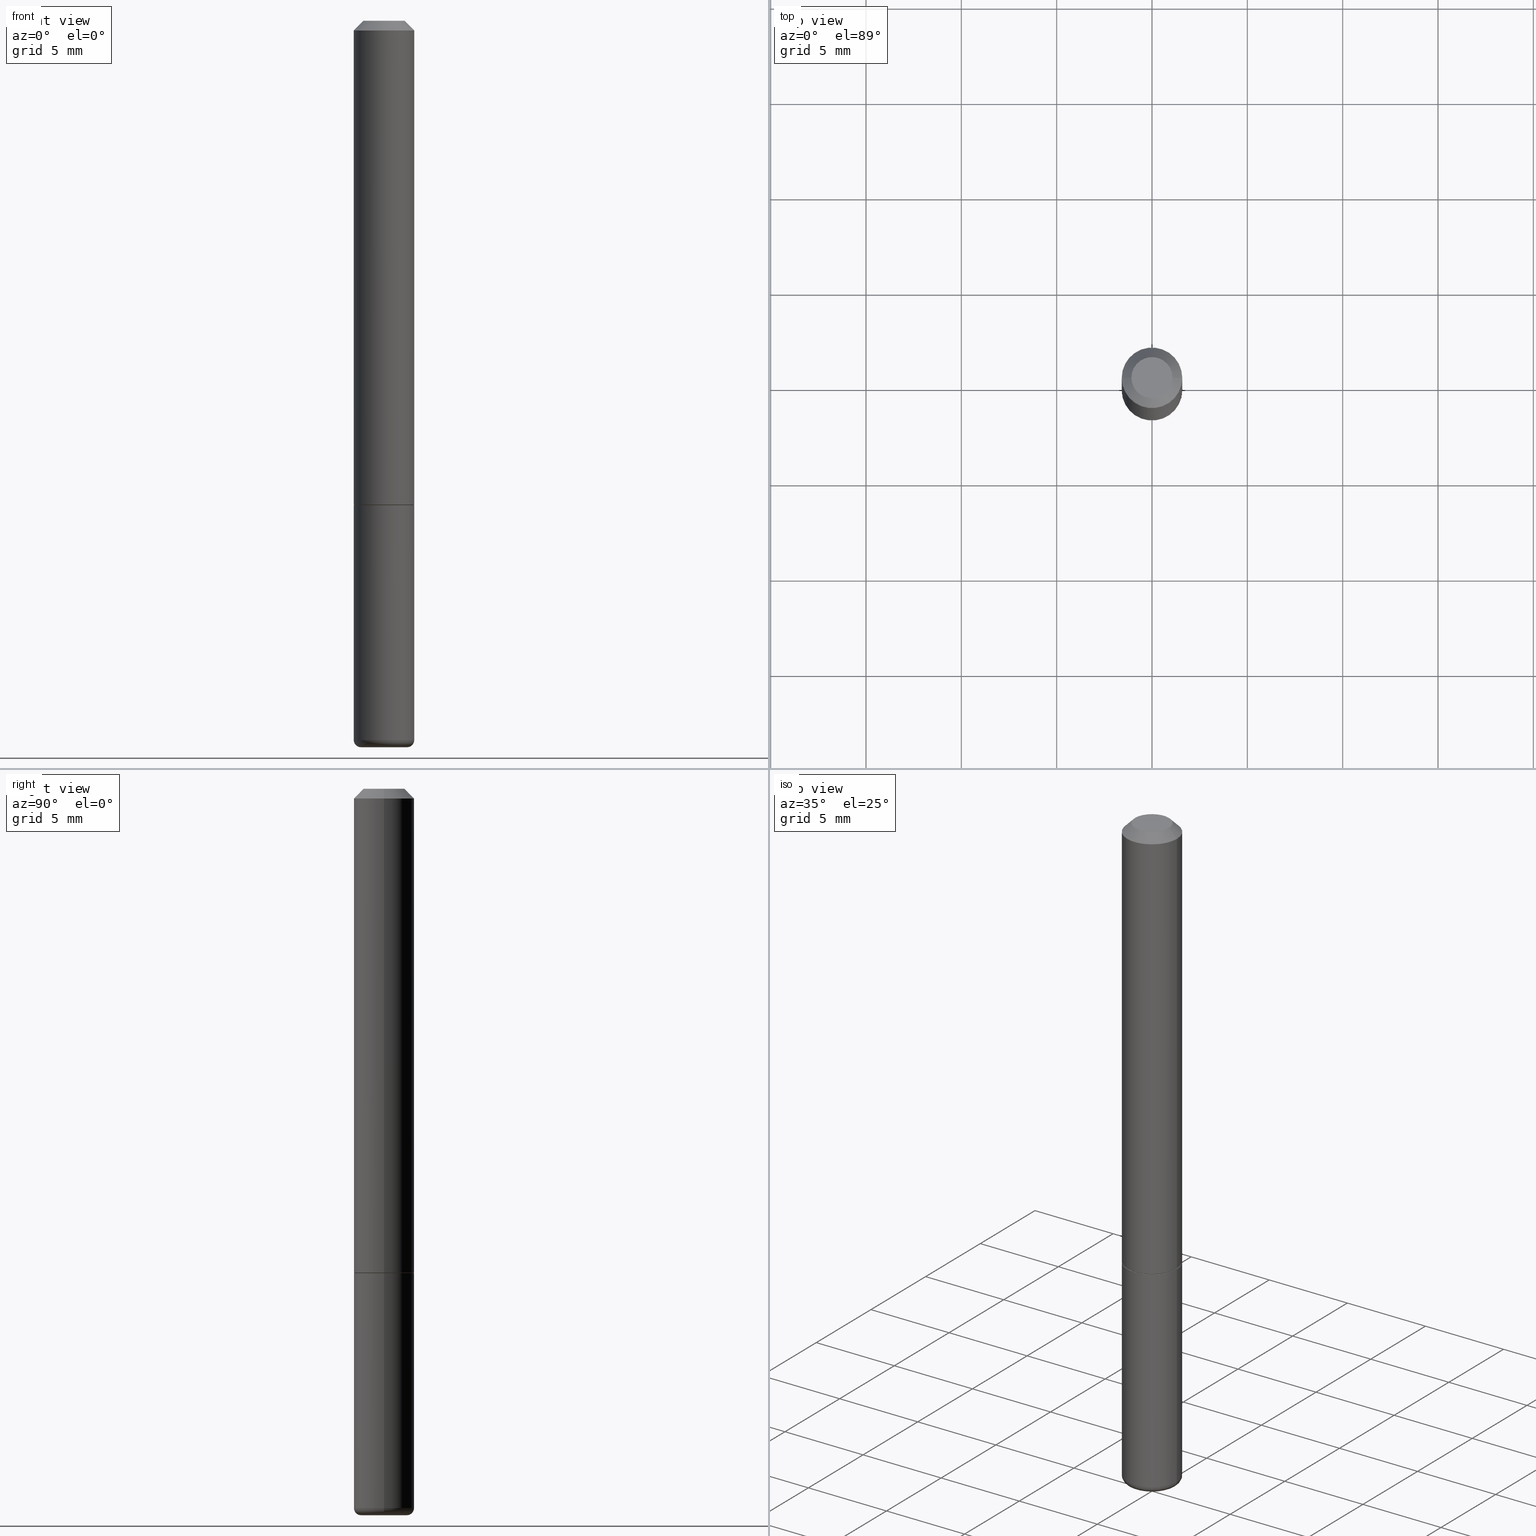
[diagram: canonical four-view strip — front | top / right | iso, engineering-drawing reading convention]
A machine part, canonical four-view strip (front | top / right | iso — engineering-drawing reading convention). The complete STEP part file that produces these views, byte-faithful:
ISO-10303-21;
HEADER;
FILE_DESCRIPTION (( 'STEP AP203' ),
    '1' );
FILE_NAME ('38115.STEP',
    '2023-03-22T20:19:31',
    ( '' ),
    ( '' ),
    'SwSTEP 2.0',
    'SolidWorks 2022',
    '' );
FILE_SCHEMA (( 'CONFIG_CONTROL_DESIGN' ));
ENDSEC;

DATA;
#1 = CARTESIAN_POINT ( 'NONE',  ( -2.036921152567683466E-17, -5.228674068168398963E-15, -1.497551772652707003 ) ) ;
#2 = AXIS2_PLACEMENT_3D ( 'NONE', #210, #307, #131 ) ;
#3 = CARTESIAN_POINT ( 'NONE',  ( 2.445468806185137438E-29, -3.491481338843146371E-15, -1.000000000000000222 ) ) ;
#4 = ADVANCED_FACE ( 'NONE', ( #124 ), #401, .T. ) ;
#5 = ORIENTED_EDGE ( 'NONE', *, *, #301, .F. ) ;
#6 = PLANE ( 'NONE',  #367 ) ;
#7 = APPROVAL_STATUS ( 'not_yet_approved' ) ;
#8 = AXIS2_PLACEMENT_3D ( 'NONE', #14, #155, #158 ) ;
#9 = PERSON_AND_ORGANIZATION ( #115, #89 ) ;
#10 = AXIS2_PLACEMENT_3D ( 'NONE', #440, #39, #68 ) ;
#11 = CARTESIAN_POINT ( 'NONE',  ( 0.000000000000000000, 0.000000000000000000, 0.000000000000000000 ) ) ;
#12 = DIRECTION ( 'NONE',  ( -2.438088387897960049E-29, 3.491481338843145188E-15, 1.000000000000000000 ) ) ;
#13 = CARTESIAN_POINT ( 'NONE',  ( 0.06250000000000001388, -3.927916506198538435E-15, -1.000000000000000222 ) ) ;
#14 = CARTESIAN_POINT ( 'NONE',  ( 3.631571448635045368E-29, -5.184921562489524681E-15, -1.485020556978682515 ) ) ;
#15 = CIRCLE ( 'NONE', #272, 0.04249999999999995448 ) ;
#16 = LOCAL_TIME ( 16, 19, 31.00000000000000000, #330 ) ;
#17 = EDGE_CURVE ( 'NONE', #285, #205, #218, .T. ) ;
#18 = ORIENTED_EDGE ( 'NONE', *, *, #429, .F. ) ;
#19 = DATE_AND_TIME ( #85, #16 ) ;
#20 = ORIENTED_EDGE ( 'NONE', *, *, #32, .T. ) ;
#21 = CARTESIAN_POINT ( 'NONE',  ( 2.445468806185137438E-29, -3.491481338843146371E-15, -1.000000000000000222 ) ) ;
#22 = CIRCLE ( 'NONE', #266, 0.06150000000000001299 ) ;
#23 = ORIENTED_EDGE ( 'NONE', *, *, #60, .T. ) ;
#24 = CIRCLE ( 'NONE', #300, 0.06250000000000001388 ) ;
#25 = CARTESIAN_POINT ( 'NONE',  ( 0.000000000000000000, 0.000000000000000000, 0.000000000000000000 ) ) ;
#26 = CC_DESIGN_PERSON_AND_ORGANIZATION_ASSIGNMENT ( #151, #225, ( #442 ) ) ;
#27 = CARTESIAN_POINT ( 'NONE',  ( -0.06150000000000001299, -3.049199102002463150E-15, -1.000000000000000222 ) ) ;
#28 = EDGE_LOOP ( 'NONE', ( #63, #102, #395, #237 ) ) ;
#29 = DIRECTION ( 'NONE',  ( 1.000000000000000000, -6.982962677686268288E-15, 0.000000000000000000 ) ) ;
#30 = DIRECTION ( 'NONE',  ( -2.445468806185136877E-29, 3.491481338843145188E-15, 1.000000000000000000 ) ) ;
#31 = DIRECTION ( 'NONE',  ( 1.000000000000000000, -6.982962677686259611E-15, 4.883557194083110659E-29 ) ) ;
#32 = EDGE_CURVE ( 'NONE', #337, #100, #231, .T. ) ;
#33 = VECTOR ( 'NONE', #394, 39.37007874015748143 ) ;
#34 = DIRECTION ( 'NONE',  ( -2.445468806185136877E-29, 3.491481338843145188E-15, 1.000000000000000000 ) ) ;
#35 = EDGE_LOOP ( 'NONE', ( #302, #214, #162, #346 ) ) ;
#36 = DIRECTION ( 'NONE',  ( 1.000000000000000000, -6.982962677686269077E-15, 0.000000000000000000 ) ) ;
#37 = FACE_OUTER_BOUND ( 'NONE', #135, .T. ) ;
#38 = ORIENTED_EDGE ( 'NONE', *, *, #429, .T. ) ;
#39 = DIRECTION ( 'NONE',  ( -2.445468806185136597E-29, 3.491481338843145583E-15, 1.000000000000000000 ) ) ;
#40 = CIRCLE ( 'NONE', #384, 0.01499999999999971148 ) ;
#41 = CC_DESIGN_APPROVAL ( #120, ( #371 ) ) ;
#42 = PERSON_AND_ORGANIZATION ( #115, #89 ) ;
#43 = VERTEX_POINT ( 'NONE', #202 ) ;
#44 = PERSON_AND_ORGANIZATION_ROLE ( 'creator' ) ;
#45 = DIRECTION ( 'NONE',  ( -2.445468806185136597E-29, 3.491481338843145583E-15, 1.000000000000000000 ) ) ;
#46 = CARTESIAN_POINT ( 'NONE',  ( 0.06249999999999975020, -5.621356729844913983E-15, -1.485020556978682515 ) ) ;
#47 = PERSON_AND_ORGANIZATION_ROLE ( 'creator' ) ;
#48 = AXIS2_PLACEMENT_3D ( 'NONE', #388, #230, #147 ) ;
#49 = LENGTH_MEASURE_WITH_UNIT ( LENGTH_MEASURE( 0.02539999999999999897 ), #423 );
#50 = CIRCLE ( 'NONE', #2, 0.04671496065635604572 ) ;
#51 = VERTEX_POINT ( 'NONE', #223 ) ;
#52 = PLANE ( 'NONE',  #299 ) ;
#53 = EDGE_CURVE ( 'NONE', #285, #140, #325, .T. ) ;
#54 = VERTEX_POINT ( 'NONE', #27 ) ;
#55 = VERTEX_POINT ( 'NONE', #240 ) ;
#56 = CC_DESIGN_SECURITY_CLASSIFICATION ( #219, ( #97 ) ) ;
#57 = ORIENTED_EDGE ( 'NONE', *, *, #282, .F. ) ;
#58 = ORIENTED_EDGE ( 'NONE', *, *, #434, .T. ) ;
#59 = DATE_TIME_ROLE ( 'classification_date' ) ;
#60 = EDGE_CURVE ( 'NONE', #43, #55, #15, .T. ) ;
#61 = ORIENTED_EDGE ( 'NONE', *, *, #112, .T. ) ;
#62 = CIRCLE ( 'NONE', #81, 0.06249999999999981265 ) ;
#63 = ORIENTED_EDGE ( 'NONE', *, *, #53, .F. ) ;
#64 = DIRECTION ( 'NONE',  ( -2.445468806185136597E-29, 3.491481338843145583E-15, 1.000000000000000000 ) ) ;
#65 = DIRECTION ( 'NONE',  ( -1.000000000000000000, 6.982962677686266711E-15, 0.000000000000000000 ) ) ;
#66 = AXIS2_PLACEMENT_3D ( 'NONE', #21, #161, #127 ) ;
#67 = LOCAL_TIME ( 16, 19, 31.00000000000000000, #145 ) ;
#68 = DIRECTION ( 'NONE',  ( 1.000000000000000000, -6.982962677686268288E-15, 0.000000000000000000 ) ) ;
#69 = DIRECTION ( 'NONE',  ( 7.105427357601001859E-15, 1.000000000000000000, -3.491481338843145583E-15 ) ) ;
#70 = EDGE_CURVE ( 'NONE', #51, #54, #22, .T. ) ;
#71 = DIRECTION ( 'NONE',  ( -6.982962677686266711E-15, -1.000000000000000000, 3.491481338843145583E-15 ) ) ;
#72 = FACE_OUTER_BOUND ( 'NONE', #374, .T. ) ;
#73 = DIRECTION ( 'NONE',  ( 1.000000000000000000, -6.982962677686266711E-15, 4.876176775795935232E-29 ) ) ;
#74 = CONICAL_SURFACE ( 'NONE', #260, 0.06150000000000001299, 0.7853981633975165577 ) ;
#75 = APPROVAL_PERSON_ORGANIZATION ( #326, #259, #303 ) ;
#76 = CALENDAR_DATE ( 2023, 22, 3 ) ;
#77 = CARTESIAN_POINT ( 'NONE',  ( -0.04750000000000004219, -4.847413763003477187E-15, -1.485020556978682960 ) ) ;
#78 = DIRECTION ( 'NONE',  ( 0.7071067811865957564, -2.468850131082761932E-15, 0.7071067811864992780 ) ) ;
#79 = EDGE_CURVE ( 'NONE', #54, #51, #390, .T. ) ;
#80 =( NAMED_UNIT ( * ) PLANE_ANGLE_UNIT ( ) SI_UNIT ( $, .RADIAN. ) );
#81 = AXIS2_PLACEMENT_3D ( 'NONE', #349, #101, #177 ) ;
#82 = DIRECTION ( 'NONE',  ( 1.000000000000000000, -6.982962677686259611E-15, 4.883557194083110659E-29 ) ) ;
#83 = ADVANCED_FACE ( 'NONE', ( #397 ), #93, .T. ) ;
#84 = FACE_OUTER_BOUND ( 'NONE', #165, .T. ) ;
#85 = CALENDAR_DATE ( 2023, 22, 3 ) ;
#86 = CC_DESIGN_PERSON_AND_ORGANIZATION_ASSIGNMENT ( #9, #297, ( #219 ) ) ;
#87 = DIRECTION ( 'NONE',  ( -1.000000000000000000, 6.982962677686266711E-15, 0.000000000000000000 ) ) ;
#88 = AXIS2_PLACEMENT_3D ( 'NONE', #379, #284, #350 ) ;
#89 = ORGANIZATION ( 'UNSPECIFIED', 'UNSPECIFIED', '' ) ;
#90 = ORIENTED_EDGE ( 'NONE', *, *, #370, .T. ) ;
#91 = ORIENTED_EDGE ( 'NONE', *, *, #383, .T. ) ;
#92 = ADVANCED_FACE ( 'NONE', ( #249 ), #74, .T. ) ;
#93 = CYLINDRICAL_SURFACE ( 'NONE', #132, 0.06249999999999988204 ) ;
#94 = VERTEX_POINT ( 'NONE', #317 ) ;
#95 = CARTESIAN_POINT ( 'NONE',  ( 2.445468806185137438E-29, -3.491481338843146371E-15, -1.000000000000000222 ) ) ;
#96 = EDGE_LOOP ( 'NONE', ( #288, #441, #160 ) ) ;
#97 = PRODUCT_DEFINITION_FORMATION_WITH_SPECIFIED_SOURCE ( 'ANY', '', #442, .NOT_KNOWN. ) ;
#98 = ADVANCED_FACE ( 'NONE', ( #291 ), #144, .F. ) ;
#99 = DIRECTION ( 'NONE',  ( -2.445468806185136597E-29, 3.491481338843145583E-15, 1.000000000000000000 ) ) ;
#100 = VERTEX_POINT ( 'NONE', #108 ) ;
#101 = DIRECTION ( 'NONE',  ( -2.445468806185136597E-29, 3.491481338843145583E-15, 1.000000000000000000 ) ) ;
#102 = ORIENTED_EDGE ( 'NONE', *, *, #17, .T. ) ;
#103 = CYLINDRICAL_SURFACE ( 'NONE', #200, 0.06249999999999988204 ) ;
#104 = DIRECTION ( 'NONE',  ( 2.445468806185136597E-29, -3.491481338843145583E-15, -1.000000000000000000 ) ) ;
#105 = CONICAL_SURFACE ( 'NONE', #339, 751.2258538476739886, 1.518436449235074148 ) ;
#106 = DIRECTION ( 'NONE',  ( -0.7071067811865461294, 2.468850131082242072E-15, -0.7071067811865489050 ) ) ;
#107 = CARTESIAN_POINT ( 'NONE',  ( -0.04671496065635604572, -4.823062300723629506E-15, -1.500000000000000888 ) ) ;
#108 = CARTESIAN_POINT ( 'NONE',  ( 0.06249999999999981265, -4.986107516375823445E-16, -0.01999999999999999001 ) ) ;
#109 = DIRECTION ( 'NONE',  ( 2.438088387897960049E-29, -3.491481338843145188E-15, -1.000000000000000000 ) ) ;
#110 = APPLICATION_CONTEXT ( 'configuration controlled 3d designs of mechanical parts and assemblies' ) ;
#111 = AXIS2_PLACEMENT_3D ( 'NONE', #271, #318, #148 ) ;
#112 = EDGE_CURVE ( 'NONE', #322, #285, #40, .T. ) ;
#113 = APPROVAL_DATE_TIME ( #221, #424 ) ;
#114 = DATE_TIME_ROLE ( 'creation_date' ) ;
#115 = PERSON ( 'UNSPECIFIED', 'UNSPECIFIED', 'UNSPECIFIED', ('UNSPECIFIED'), ('UNSPECIFIED'), ('UNSPECIFIED') ) ;
#116 = CARTESIAN_POINT ( 'NONE',  ( 1.357006838635785746E-45, -1.937446121494581442E-31, -5.549066237130534971E-17 ) ) ;
#117 = EDGE_CURVE ( 'NONE', #100, #94, #199, .T. ) ;
#118 = FACE_OUTER_BOUND ( 'NONE', #270, .T. ) ;
#119 = DIRECTION ( 'NONE',  ( 0.000000000000000000, 0.000000000000000000, 1.000000000000000000 ) ) ;
#120 = APPROVAL ( #7, 'UNSPECIFIED' ) ;
#121 = DIRECTION ( 'NONE',  ( -1.000000000000000000, 6.982962677686265922E-15, -4.876176775795935793E-29 ) ) ;
#122 = ADVANCED_BREP_SHAPE_REPRESENTATION ( '38115', ( #289, #426, #363 ), #432 ) ;
#123 = FACE_OUTER_BOUND ( 'NONE', #35, .T. ) ;
#124 = FACE_OUTER_BOUND ( 'NONE', #224, .T. ) ;
#125 = APPLICATION_CONTEXT ( 'configuration controlled 3d designs of mechanical parts and assemblies' ) ;
#126 = CIRCLE ( 'NONE', #164, 0.06249999999999995143 ) ;
#127 = DIRECTION ( 'NONE',  ( 1.000000000000000000, -6.982962677686268288E-15, 0.000000000000000000 ) ) ;
#128 = ORIENTED_EDGE ( 'NONE', *, *, #383, .F. ) ;
#129 = VERTEX_POINT ( 'NONE', #139 ) ;
#130 = ADVANCED_FACE ( 'NONE', ( #37 ), #105, .F. ) ;
#131 = DIRECTION ( 'NONE',  ( 1.000000000000000000, -6.982962677686258033E-15, 0.000000000000000000 ) ) ;
#132 = AXIS2_PLACEMENT_3D ( 'NONE', #25, #166, #435 ) ;
#133 = CIRCLE ( 'NONE', #232, 0.06250000000000001388 ) ;
#134 = DIRECTION ( 'NONE',  ( -2.445468806185136597E-29, 3.491481338843145583E-15, 1.000000000000000000 ) ) ;
#135 = EDGE_LOOP ( 'NONE', ( #309, #359, #128 ) ) ;
#136 = DIRECTION ( 'NONE',  ( -0.7071067811865957564, 7.493145998870527710E-15, 0.7071067811864992780 ) ) ;
#137 = EDGE_LOOP ( 'NONE', ( #314, #351, #168, #235 ) ) ;
#138 = LINE ( 'NONE', #382, #356 ) ;
#139 = CARTESIAN_POINT ( 'NONE',  ( 3.676439890055245808E-29, -5.208304856642685058E-15, -1.497551772652707003 ) ) ;
#140 = VERTEX_POINT ( 'NONE', #335 ) ;
#141 = AXIS2_PLACEMENT_3D ( 'NONE', #280, #99, #415 ) ;
#142 = CARTESIAN_POINT ( 'NONE',  ( 2.445468806185137438E-29, -3.491481338843146371E-15, -1.000000000000000222 ) ) ;
#143 =( NAMED_UNIT ( * ) SI_UNIT ( $, .STERADIAN. ) SOLID_ANGLE_UNIT ( ) );
#144 = PLANE ( 'NONE',  #238 ) ;
#145 = COORDINATED_UNIVERSAL_TIME_OFFSET ( 5, 0, .BEHIND. ) ;
#146 = CARTESIAN_POINT ( 'NONE',  ( 0.06150000000000001299, -3.920933543520852421E-15, -1.000000000000000222 ) ) ;
#147 = DIRECTION ( 'NONE',  ( -1.000000000000000000, 6.982962677686266711E-15, 0.000000000000000000 ) ) ;
#148 = DIRECTION ( 'NONE',  ( 1.000000000000000000, -6.982962677686266711E-15, 4.876176775795935232E-29 ) ) ;
#149 = CARTESIAN_POINT ( 'NONE',  ( 0.04671496065635604572, -5.563430835017637755E-15, -1.500000000000000888 ) ) ;
#150 = ADVANCED_FACE ( 'NONE', ( #123 ), #320, .T. ) ;
#151 = PERSON_AND_ORGANIZATION ( #115, #89 ) ;
#152 = EDGE_LOOP ( 'NONE', ( #58, #23 ) ) ;
#153 = APPROVAL_ROLE ( '' ) ;
#154 = FACE_OUTER_BOUND ( 'NONE', #192, .T. ) ;
#155 = DIRECTION ( 'NONE',  ( -2.445468806185136597E-29, 3.491481338843145583E-15, 1.000000000000000000 ) ) ;
#156 = VERTEX_POINT ( 'NONE', #13 ) ;
#157 = COORDINATED_UNIVERSAL_TIME_OFFSET ( 5, 0, .BEHIND. ) ;
#158 = DIRECTION ( 'NONE',  ( 1.000000000000000000, -6.982962677686259611E-15, 0.000000000000000000 ) ) ;
#159 = ADVANCED_FACE ( 'NONE', ( #154 ), #376, .T. ) ;
#160 = ORIENTED_EDGE ( 'NONE', *, *, #331, .F. ) ;
#161 = DIRECTION ( 'NONE',  ( -2.445468806185136597E-29, 3.491481338843145583E-15, 1.000000000000000000 ) ) ;
#162 = ORIENTED_EDGE ( 'NONE', *, *, #301, .T. ) ;
#163 = VECTOR ( 'NONE', #181, 39.37007874015748143 ) ;
#164 = AXIS2_PLACEMENT_3D ( 'NONE', #215, #64, #29 ) ;
#165 = EDGE_LOOP ( 'NONE', ( #396, #38, #333, #392 ) ) ;
#166 = DIRECTION ( 'NONE',  ( -2.445468806185136597E-29, 3.491481338843145583E-15, 1.000000000000000000 ) ) ;
#167 = ADVANCED_FACE ( 'NONE', ( #84 ), #336, .T. ) ;
#168 = ORIENTED_EDGE ( 'NONE', *, *, #292, .F. ) ;
#169 = CARTESIAN_POINT ( 'NONE',  ( 0.000000000000000000, 0.000000000000000000, 0.000000000000000000 ) ) ;
#170 = CC_DESIGN_PERSON_AND_ORGANIZATION_ASSIGNMENT ( #357, #44, ( #97 ) ) ;
#171 = ORIENTED_EDGE ( 'NONE', *, *, #269, .T. ) ;
#172 = CARTESIAN_POINT ( 'NONE',  ( -0.06249999999999988204, 4.440892098500617780E-16, -3.074334431409310158E-30 ) ) ;
#173 = CARTESIAN_POINT ( 'NONE',  ( 1.357006838635785746E-45, -1.937446121494581442E-31, -5.549066237130534971E-17 ) ) ;
#174 = VERTEX_POINT ( 'NONE', #431 ) ;
#175 = LINE ( 'NONE', #1, #340 ) ;
#176 = ORIENTED_EDGE ( 'NONE', *, *, #247, .T. ) ;
#177 = DIRECTION ( 'NONE',  ( 1.000000000000000000, -6.982962677686266711E-15, 0.000000000000000000 ) ) ;
#178 = CARTESIAN_POINT ( 'NONE',  ( 9.994051560177719446E-28, -1.426885692982134992E-13, -40.86763051281019443 ) ) ;
#179 = EDGE_LOOP ( 'NONE', ( #18, #304, #20, #209 ) ) ;
#180 = ORIENTED_EDGE ( 'NONE', *, *, #79, .T. ) ;
#181 = DIRECTION ( 'NONE',  ( 0.7071067811865461294, -7.319954787623251312E-15, -0.7071067811865489050 ) ) ;
#182 = CLOSED_SHELL ( 'NONE', ( #159, #167, #342, #150, #417, #92, #226, #98 ) ) ;
#183 = CIRCLE ( 'NONE', #377, 0.04249999999999995448 ) ;
#184 = APPROVAL_ROLE ( '' ) ;
#185 = ADVANCED_FACE ( 'NONE', ( #345 ), #243, .F. ) ;
#186 = CARTESIAN_POINT ( 'NONE',  ( 4.364351673554161734E-16, 0.06249999999999652361, -1.000000000000000444 ) ) ;
#187 = DATE_AND_TIME ( #222, #296 ) ;
#188 = DIRECTION ( 'NONE',  ( 2.438088387897960049E-29, -3.491481338843145188E-15, -1.000000000000000000 ) ) ;
#189 = APPROVAL_STATUS ( 'not_yet_approved' ) ;
#190 = VECTOR ( 'NONE', #191, 39.37007874015748143 ) ;
#191 = DIRECTION ( 'NONE',  ( -2.445468806185136877E-29, 3.491481338843145188E-15, 1.000000000000000000 ) ) ;
#192 = EDGE_LOOP ( 'NONE', ( #311, #171, #278, #329 ) ) ;
#193 = DIRECTION ( 'NONE',  ( 1.000000000000000000, 0.000000000000000000, 0.000000000000000000 ) ) ;
#194 = CARTESIAN_POINT ( 'NONE',  ( 3.631571448635045929E-29, -5.184921562489525469E-15, -1.485020556978682960 ) ) ;
#195 = DIRECTION ( 'NONE',  ( 1.000000000000000000, -6.982962677686265922E-15, 4.876176775795935793E-29 ) ) ;
#196 = DIRECTION ( 'NONE',  ( 2.445468806185136597E-29, -3.491481338843145583E-15, -1.000000000000000000 ) ) ;
#197 = ORIENTED_EDGE ( 'NONE', *, *, #257, .F. ) ;
#198 = CARTESIAN_POINT ( 'NONE',  ( 0.06249999999999981265, -4.986107516375823445E-16, -0.01999999999999999001 ) ) ;
#199 = CIRCLE ( 'NONE', #88, 0.06249999999999981265 ) ;
#200 = AXIS2_PLACEMENT_3D ( 'NONE', #274, #381, #73 ) ;
#201 = APPROVAL_DATE_TIME ( #341, #259 ) ;
#202 = CARTESIAN_POINT ( 'NONE',  ( 0.04249999999999995448, -3.950909582714361036E-16, -5.549066237130292766E-17 ) ) ;
#203 = CARTESIAN_POINT ( 'NONE',  ( 4.890937612370270531E-31, -6.982962677686289144E-17, -0.01999999999999999001 ) ) ;
#204 = ORIENTED_EDGE ( 'NONE', *, *, #117, .T. ) ;
#205 = VERTEX_POINT ( 'NONE', #46 ) ;
#206 = AXIS2_PLACEMENT_3D ( 'NONE', #438, #408, #65 ) ;
#207 = ORIENTED_EDGE ( 'NONE', *, *, #70, .F. ) ;
#208 = LINE ( 'NONE', #172, #190 ) ;
#209 = ORIENTED_EDGE ( 'NONE', *, *, #364, .F. ) ;
#210 = CARTESIAN_POINT ( 'NONE',  ( 3.668203209277707137E-29, -5.237222008264721332E-15, -1.500000000000000888 ) ) ;
#211 = CIRCLE ( 'NONE', #10, 0.06249999999999995143 ) ;
#212 = ADVANCED_FACE ( 'NONE', ( #72 ), #6, .F. ) ;
#213 = CARTESIAN_POINT ( 'NONE',  ( -0.06249999999999975020, -3.894112240816274685E-15, -1.485020556978682515 ) ) ;
#214 = ORIENTED_EDGE ( 'NONE', *, *, #434, .F. ) ;
#215 = CARTESIAN_POINT ( 'NONE',  ( 2.443023337378952675E-29, -3.487989857504303759E-15, -0.9990000000000004432 ) ) ;
#216 = COORDINATED_UNIVERSAL_TIME_OFFSET ( 5, 0, .BEHIND. ) ;
#217 = DIRECTION ( 'NONE',  ( 1.000000000000000000, -6.982962677686268288E-15, 0.000000000000000000 ) ) ;
#218 = CIRCLE ( 'NONE', #8, 0.06249999999999975020 ) ;
#219 = SECURITY_CLASSIFICATION ( '', '', #319 ) ;
#220 = APPROVAL_PERSON_ORGANIZATION ( #42, #424, #184 ) ;
#221 = DATE_AND_TIME ( #385, #273 ) ;
#222 = CALENDAR_DATE ( 2023, 22, 3 ) ;
#223 = CARTESIAN_POINT ( 'NONE',  ( 0.06150000000000001299, -3.920933543520852421E-15, -1.000000000000000222 ) ) ;
#224 = EDGE_LOOP ( 'NONE', ( #410, #61, #57, #430 ) ) ;
#225 = PERSON_AND_ORGANIZATION_ROLE ( 'design_owner' ) ;
#226 = ADVANCED_FACE ( 'NONE', ( #118 ), #52, .F. ) ;
#227 = AXIS2_PLACEMENT_3D ( 'NONE', #315, #71, #378 ) ;
#228 = DIRECTION ( 'NONE',  ( 1.000000000000000000, -6.982962677686268288E-15, 0.000000000000000000 ) ) ;
#229 =( CONVERSION_BASED_UNIT ( 'INCH', #49 ) LENGTH_UNIT ( ) NAMED_UNIT ( #365 ) );
#230 = DIRECTION ( 'NONE',  ( 2.445468806185136597E-29, -3.491481338843145583E-15, -1.000000000000000000 ) ) ;
#231 = LINE ( 'NONE', #428, #33 ) ;
#232 = AXIS2_PLACEMENT_3D ( 'NONE', #3, #134, #36 ) ;
#233 = DIRECTION ( 'NONE',  ( 1.000000000000000000, -6.982962677686268288E-15, 0.000000000000000000 ) ) ;
#234 = APPROVAL_STATUS ( 'not_yet_approved' ) ;
#235 = ORIENTED_EDGE ( 'NONE', *, *, #411, .F. ) ;
#236 = EDGE_CURVE ( 'NONE', #51, #337, #366, .T. ) ;
#237 = ORIENTED_EDGE ( 'NONE', *, *, #370, .F. ) ;
#238 = AXIS2_PLACEMENT_3D ( 'NONE', #418, #109, #251 ) ;
#239 = APPROVAL_PERSON_ORGANIZATION ( #294, #120, #153 ) ;
#240 = CARTESIAN_POINT ( 'NONE',  ( -0.04249999999999995448, 3.316907271900966728E-16, -5.549066237130754373E-17 ) ) ;
#241 = FACE_OUTER_BOUND ( 'NONE', #179, .T. ) ;
#242 = DIRECTION ( 'NONE',  ( -2.445468806185136597E-29, 3.491481338843145583E-15, 1.000000000000000000 ) ) ;
#243 = CONICAL_SURFACE ( 'NONE', #48, 751.2258538476739886, 1.518436449235074148 ) ;
#244 = AXIS2_PLACEMENT_3D ( 'NONE', #246, #347, #412 ) ;
#245 = VERTEX_POINT ( 'NONE', #149 ) ;
#246 = CARTESIAN_POINT ( 'NONE',  ( 3.631571448635045368E-29, -5.184921562489524681E-15, -1.485020556978682515 ) ) ;
#247 = EDGE_CURVE ( 'NONE', #43, #100, #256, .T. ) ;
#248 = FACE_OUTER_BOUND ( 'NONE', #137, .T. ) ;
#249 = FACE_OUTER_BOUND ( 'NONE', #433, .T. ) ;
#250 = CC_DESIGN_DATE_AND_TIME_ASSIGNMENT ( #187, #114, ( #371 ) ) ;
#251 = DIRECTION ( 'NONE',  ( -1.000000000000000000, 6.982962677686265922E-15, -4.876176775795935793E-29 ) ) ;
#252 = AXIS2_PLACEMENT_3D ( 'NONE', #203, #196, #87 ) ;
#253 = CC_DESIGN_APPROVAL ( #259, ( #219 ) ) ;
#254 = PERSON_AND_ORGANIZATION_ROLE ( 'design_supplier' ) ;
#255 = CARTESIAN_POINT ( 'NONE',  ( 2.036921152575008162E-17, -5.228674068168398963E-15, -1.497551772652707003 ) ) ;
#256 = LINE ( 'NONE', #198, #163 ) ;
#257 = EDGE_CURVE ( 'NONE', #174, #337, #211, .T. ) ;
#258 = DIRECTION ( 'NONE',  ( -2.445468806185136597E-29, 3.491481338843145583E-15, 1.000000000000000000 ) ) ;
#259 = APPROVAL ( #234, 'UNSPECIFIED' ) ;
#260 = AXIS2_PLACEMENT_3D ( 'NONE', #355, #45, #217 ) ;
#261 = CONICAL_SURFACE ( 'NONE', #206, 0.06249999999999981265, 0.7853981633974463916 ) ;
#262 = ORIENTED_EDGE ( 'NONE', *, *, #79, .F. ) ;
#263 = CARTESIAN_POINT ( 'NONE',  ( 2.445468806185137438E-29, -3.491481338843146371E-15, -1.000000000000000222 ) ) ;
#264 = EDGE_CURVE ( 'NONE', #129, #322, #175, .T. ) ;
#265 = ORIENTED_EDGE ( 'NONE', *, *, #275, .T. ) ;
#266 = AXIS2_PLACEMENT_3D ( 'NONE', #95, #308, #233 ) ;
#267 = CC_DESIGN_DATE_AND_TIME_ASSIGNMENT ( #19, #59, ( #219 ) ) ;
#268 = VECTOR ( 'NONE', #34, 39.37007874015748143 ) ;
#269 = EDGE_CURVE ( 'NONE', #54, #174, #353, .T. ) ;
#270 = EDGE_LOOP ( 'NONE', ( #207, #262 ) ) ;
#271 = CARTESIAN_POINT ( 'NONE',  ( 0.000000000000000000, 0.000000000000000000, 0.000000000000000000 ) ) ;
#272 = AXIS2_PLACEMENT_3D ( 'NONE', #173, #332, #373 ) ;
#273 = LOCAL_TIME ( 16, 19, 31.00000000000000000, #290 ) ;
#274 = CARTESIAN_POINT ( 'NONE',  ( 0.000000000000000000, 0.000000000000000000, 0.000000000000000000 ) ) ;
#275 = EDGE_CURVE ( 'NONE', #245, #205, #420, .T. ) ;
#276 = ORIENTED_EDGE ( 'NONE', *, *, #112, .F. ) ;
#277 = CARTESIAN_POINT ( 'NONE',  ( -0.06150000000000001299, -3.054497556350684763E-15, -1.000000000000000222 ) ) ;
#278 = ORIENTED_EDGE ( 'NONE', *, *, #399, .F. ) ;
#279 = CARTESIAN_POINT ( 'NONE',  ( 0.06249999999999995143, -3.924425024859695428E-15, -0.9990000000000004432 ) ) ;
#280 = CARTESIAN_POINT ( 'NONE',  ( 3.668203209277707137E-29, -5.237222008264721332E-15, -1.500000000000000888 ) ) ;
#281 = AXIS2_PLACEMENT_3D ( 'NONE', #194, #425, #82 ) ;
#282 = EDGE_CURVE ( 'NONE', #205, #285, #283, .T. ) ;
#283 = CIRCLE ( 'NONE', #244, 0.06249999999999975020 ) ;
#284 = DIRECTION ( 'NONE',  ( -2.445468806185136597E-29, 3.491481338843145583E-15, 1.000000000000000000 ) ) ;
#285 = VERTEX_POINT ( 'NONE', #213 ) ;
#286 = PRODUCT_DEFINITION_SHAPE ( 'NONE', 'NONE',  #371 ) ;
#287 = LINE ( 'NONE', #416, #268 ) ;
#288 = ORIENTED_EDGE ( 'NONE', *, *, #439, .F. ) ;
#289 = MANIFOLD_SOLID_BREP ( 'Body-Move/Copy2[1]', #327 ) ;
#290 = COORDINATED_UNIVERSAL_TIME_OFFSET ( 5, 0, .BEHIND. ) ;
#291 = FACE_OUTER_BOUND ( 'NONE', #152, .T. ) ;
#292 = EDGE_CURVE ( 'NONE', #156, #140, #133, .T. ) ;
#293 = APPROVAL_DATE_TIME ( #295, #120 ) ;
#294 = PERSON_AND_ORGANIZATION ( #115, #89 ) ;
#295 = DATE_AND_TIME ( #76, #67 ) ;
#296 = LOCAL_TIME ( 16, 19, 31.00000000000000000, #216 ) ;
#297 = PERSON_AND_ORGANIZATION_ROLE ( 'classification_officer' ) ;
#298 = EDGE_LOOP ( 'NONE', ( #276, #91, #265, #380 ) ) ;
#299 = AXIS2_PLACEMENT_3D ( 'NONE', #263, #12, #195 ) ;
#300 = AXIS2_PLACEMENT_3D ( 'NONE', #142, #242, #312 ) ;
#301 = EDGE_CURVE ( 'NONE', #55, #94, #138, .T. ) ;
#302 = ORIENTED_EDGE ( 'NONE', *, *, #247, .F. ) ;
#303 = APPROVAL_ROLE ( '' ) ;
#304 = ORIENTED_EDGE ( 'NONE', *, *, #257, .T. ) ;
#305 = DIRECTION ( 'NONE',  ( -2.445468806185136597E-29, 3.491481338843145583E-15, 1.000000000000000000 ) ) ;
#306 = AXIS2_PLACEMENT_3D ( 'NONE', #387, #362, #228 ) ;
#307 = DIRECTION ( 'NONE',  ( -2.445468806185136597E-29, 3.491481338843145583E-15, 1.000000000000000000 ) ) ;
#308 = DIRECTION ( 'NONE',  ( -2.445468806185136597E-29, 3.491481338843145583E-15, 1.000000000000000000 ) ) ;
#309 = ORIENTED_EDGE ( 'NONE', *, *, #264, .F. ) ;
#310 = CYLINDRICAL_SURFACE ( 'NONE', #386, 0.06249999999999988204 ) ;
#311 = ORIENTED_EDGE ( 'NONE', *, *, #70, .T. ) ;
#312 = DIRECTION ( 'NONE',  ( 1.000000000000000000, -6.982962677686269077E-15, 0.000000000000000000 ) ) ;
#313 = DIRECTION ( 'NONE',  ( -1.000000000000000000, 6.982962677686266711E-15, 0.000000000000000000 ) ) ;
#314 = ORIENTED_EDGE ( 'NONE', *, *, #282, .T. ) ;
#315 = CARTESIAN_POINT ( 'NONE',  ( 0.04750000000000004219, -5.516612289679623769E-15, -1.485020556978682960 ) ) ;
#316 = TOROIDAL_SURFACE ( 'NONE', #321, 0.04750000000000004219, 0.01499999999999971148 ) ;
#317 = CARTESIAN_POINT ( 'NONE',  ( -0.06249999999999981265, 3.666055405785274344E-16, -0.01999999999999999001 ) ) ;
#318 = DIRECTION ( 'NONE',  ( -2.445468806185136597E-29, 3.491481338843145583E-15, 1.000000000000000000 ) ) ;
#319 = SECURITY_CLASSIFICATION_LEVEL ( 'unclassified' ) ;
#320 = CONICAL_SURFACE ( 'NONE', #252, 0.06249999999999981265, 0.7853981633974463916 ) ;
#321 = AXIS2_PLACEMENT_3D ( 'NONE', #372, #344, #31 ) ;
#322 = VERTEX_POINT ( 'NONE', #107 ) ;
#323 = ADVANCED_FACE ( 'NONE', ( #248 ), #103, .T. ) ;
#324 = MECHANICAL_CONTEXT ( 'NONE', #110, 'mechanical' ) ;
#325 = LINE ( 'NONE', #338, #427 ) ;
#326 = PERSON_AND_ORGANIZATION ( #115, #89 ) ;
#327 = CLOSED_SHELL ( 'NONE', ( #130, #4, #323, #212, #83, #421, #185 ) ) ;
#328 = LOCAL_TIME ( 16, 19, 31.00000000000000000, #157 ) ;
#329 = ORIENTED_EDGE ( 'NONE', *, *, #236, .F. ) ;
#330 = COORDINATED_UNIVERSAL_TIME_OFFSET ( 5, 0, .BEHIND. ) ;
#331 = EDGE_CURVE ( 'NONE', #245, #322, #50, .T. ) ;
#332 = DIRECTION ( 'NONE',  ( -2.445468806185136597E-29, 3.491481338843145583E-15, 1.000000000000000000 ) ) ;
#333 = ORIENTED_EDGE ( 'NONE', *, *, #117, .F. ) ;
#334 = SHAPE_DEFINITION_REPRESENTATION ( #286, #122 ) ;
#335 = CARTESIAN_POINT ( 'NONE',  ( -0.06250000000000001388, -3.894112240816274685E-15, -1.000000000000000222 ) ) ;
#336 = CYLINDRICAL_SURFACE ( 'NONE', #111, 0.06249999999999988204 ) ;
#337 = VERTEX_POINT ( 'NONE', #279 ) ;
#338 = CARTESIAN_POINT ( 'NONE',  ( -0.06249999999999988204, 4.440892098500617780E-16, -3.074334431409310158E-30 ) ) ;
#339 = AXIS2_PLACEMENT_3D ( 'NONE', #178, #104, #313 ) ;
#340 = VECTOR ( 'NONE', #375, 39.37007874015748143 ) ;
#341 = DATE_AND_TIME ( #368, #328 ) ;
#342 = ADVANCED_FACE ( 'NONE', ( #343 ), #261, .T. ) ;
#343 = FACE_OUTER_BOUND ( 'NONE', #407, .T. ) ;
#344 = DIRECTION ( 'NONE',  ( -2.445468806185136597E-29, 3.491481338843145583E-15, 1.000000000000000000 ) ) ;
#345 = FACE_OUTER_BOUND ( 'NONE', #96, .T. ) ;
#346 = ORIENTED_EDGE ( 'NONE', *, *, #364, .T. ) ;
#347 = DIRECTION ( 'NONE',  ( -2.445468806185136597E-29, 3.491481338843145583E-15, 1.000000000000000000 ) ) ;
#348 = UNCERTAINTY_MEASURE_WITH_UNIT (LENGTH_MEASURE( 1.000000000000000082E-05 ), #229, 'distance_accuracy_value', 'NONE');
#349 = CARTESIAN_POINT ( 'NONE',  ( 4.890937612370270531E-31, -6.982962677686289144E-17, -0.01999999999999999001 ) ) ;
#350 = DIRECTION ( 'NONE',  ( 1.000000000000000000, -6.982962677686266711E-15, 0.000000000000000000 ) ) ;
#351 = ORIENTED_EDGE ( 'NONE', *, *, #53, .T. ) ;
#352 = CC_DESIGN_PERSON_AND_ORGANIZATION_ASSIGNMENT ( #419, #254, ( #97 ) ) ;
#353 = LINE ( 'NONE', #277, #391 ) ;
#354 = APPLICATION_PROTOCOL_DEFINITION ( 'international standard', 'config_control_design', 1994, #125 ) ;
#355 = CARTESIAN_POINT ( 'NONE',  ( 2.445468806185137438E-29, -3.491481338843146371E-15, -1.000000000000000222 ) ) ;
#356 = VECTOR ( 'NONE', #106, 39.37007874015748143 ) ;
#357 = PERSON_AND_ORGANIZATION ( #115, #89 ) ;
#358 = APPLICATION_PROTOCOL_DEFINITION ( 'international standard', 'config_control_design', 1994, #110 ) ;
#359 = ORIENTED_EDGE ( 'NONE', *, *, #439, .T. ) ;
#360 = DIRECTION ( 'NONE',  ( 0.9986295347545742773, -7.033825938271997912E-15, -0.05233595624293643084 ) ) ;
#361 = VECTOR ( 'NONE', #78, 39.37007874015748143 ) ;
#362 = DIRECTION ( 'NONE',  ( -2.445468806185136597E-29, 3.491481338843145583E-15, 1.000000000000000000 ) ) ;
#363 = AXIS2_PLACEMENT_3D ( 'NONE', #11, #119, #193 ) ;
#364 = EDGE_CURVE ( 'NONE', #94, #100, #62, .T. ) ;
#365 = DIMENSIONAL_EXPONENTS ( 1.000000000000000000, 0.000000000000000000, 0.000000000000000000, 0.000000000000000000, 0.000000000000000000, 0.000000000000000000, 0.000000000000000000 ) ;
#366 = LINE ( 'NONE', #146, #361 ) ;
#367 = AXIS2_PLACEMENT_3D ( 'NONE', #186, #188, #121 ) ;
#368 = CALENDAR_DATE ( 2023, 22, 3 ) ;
#369 = ORIENTED_EDGE ( 'NONE', *, *, #292, .T. ) ;
#370 = EDGE_CURVE ( 'NONE', #140, #156, #24, .T. ) ;
#371 = PRODUCT_DEFINITION ( 'UNKNOWN', '', #97, #409 ) ;
#372 = CARTESIAN_POINT ( 'NONE',  ( 3.631571448635045929E-29, -5.184921562489525469E-15, -1.485020556978682960 ) ) ;
#373 = DIRECTION ( 'NONE',  ( 1.000000000000000000, -6.982962677686267499E-15, 4.870577812114089772E-29 ) ) ;
#374 = EDGE_LOOP ( 'NONE', ( #369, #90 ) ) ;
#375 = DIRECTION ( 'NONE',  ( -0.9986295347545742773, 6.790662755453668466E-15, -0.05233595624293643084 ) ) ;
#376 = CONICAL_SURFACE ( 'NONE', #306, 0.06150000000000001299, 0.7853981633975165577 ) ;
#377 = AXIS2_PLACEMENT_3D ( 'NONE', #116, #258, #422 ) ;
#378 = DIRECTION ( 'NONE',  ( 1.000000000000000000, -6.982962677686273021E-15, 0.000000000000000000 ) ) ;
#379 = CARTESIAN_POINT ( 'NONE',  ( 4.890937612370270531E-31, -6.982962677686289144E-17, -0.01999999999999999001 ) ) ;
#380 = ORIENTED_EDGE ( 'NONE', *, *, #17, .F. ) ;
#381 = DIRECTION ( 'NONE',  ( -2.445468806185136597E-29, 3.491481338843145583E-15, 1.000000000000000000 ) ) ;
#382 = CARTESIAN_POINT ( 'NONE',  ( -0.06249999999999981265, 3.666055405785274344E-16, -0.01999999999999999001 ) ) ;
#383 = EDGE_CURVE ( 'NONE', #322, #245, #437, .T. ) ;
#384 = AXIS2_PLACEMENT_3D ( 'NONE', #77, #69, #413 ) ;
#385 = CALENDAR_DATE ( 2023, 22, 3 ) ;
#386 = AXIS2_PLACEMENT_3D ( 'NONE', #169, #305, #436 ) ;
#387 = CARTESIAN_POINT ( 'NONE',  ( 2.445468806185137438E-29, -3.491481338843146371E-15, -1.000000000000000222 ) ) ;
#388 = CARTESIAN_POINT ( 'NONE',  ( 9.994051560177719446E-28, -1.426885692982134992E-13, -40.86763051281019443 ) ) ;
#389 = LINE ( 'NONE', #255, #404 ) ;
#390 = CIRCLE ( 'NONE', #66, 0.06150000000000001299 ) ;
#391 = VECTOR ( 'NONE', #136, 39.37007874015748143 ) ;
#392 = ORIENTED_EDGE ( 'NONE', *, *, #32, .F. ) ;
#393 = PERSON_AND_ORGANIZATION ( #115, #89 ) ;
#394 = DIRECTION ( 'NONE',  ( -2.445468806185136877E-29, 3.491481338843145188E-15, 1.000000000000000000 ) ) ;
#395 = ORIENTED_EDGE ( 'NONE', *, *, #411, .T. ) ;
#396 = ORIENTED_EDGE ( 'NONE', *, *, #399, .T. ) ;
#397 = FACE_OUTER_BOUND ( 'NONE', #28, .T. ) ;
#398 = ORIENTED_EDGE ( 'NONE', *, *, #269, .F. ) ;
#399 = EDGE_CURVE ( 'NONE', #337, #174, #126, .T. ) ;
#400 = ORIENTED_EDGE ( 'NONE', *, *, #60, .F. ) ;
#401 = TOROIDAL_SURFACE ( 'NONE', #281, 0.04750000000000004219, 0.01499999999999971148 ) ;
#402 = CC_DESIGN_PERSON_AND_ORGANIZATION_ASSIGNMENT ( #393, #47, ( #371 ) ) ;
#403 = CC_DESIGN_APPROVAL ( #424, ( #97 ) ) ;
#404 = VECTOR ( 'NONE', #360, 39.37007874015748143 ) ;
#405 = FACE_OUTER_BOUND ( 'NONE', #298, .T. ) ;
#406 = PRODUCT_RELATED_PRODUCT_CATEGORY ( 'detail', '', ( #442 ) ) ;
#407 = EDGE_LOOP ( 'NONE', ( #400, #176, #204, #5 ) ) ;
#408 = DIRECTION ( 'NONE',  ( 2.445468806185136597E-29, -3.491481338843145583E-15, -1.000000000000000000 ) ) ;
#409 = DESIGN_CONTEXT ( 'detailed design', #125, 'design' ) ;
#410 = ORIENTED_EDGE ( 'NONE', *, *, #331, .T. ) ;
#411 = EDGE_CURVE ( 'NONE', #205, #156, #287, .T. ) ;
#412 = DIRECTION ( 'NONE',  ( 1.000000000000000000, -6.982962677686259611E-15, 0.000000000000000000 ) ) ;
#413 = DIRECTION ( 'NONE',  ( -1.000000000000000000, 7.105427357600997914E-15, 0.000000000000000000 ) ) ;
#414 = ORIENTED_EDGE ( 'NONE', *, *, #236, .T. ) ;
#415 = DIRECTION ( 'NONE',  ( 1.000000000000000000, -6.982962677686258033E-15, 0.000000000000000000 ) ) ;
#416 = CARTESIAN_POINT ( 'NONE',  ( 0.06249999999999988204, -4.364351673553908312E-16, 3.047610484872453915E-30 ) ) ;
#417 = ADVANCED_FACE ( 'NONE', ( #241 ), #310, .T. ) ;
#418 = CARTESIAN_POINT ( 'NONE',  ( 2.967759138016660098E-16, 0.04249999999999995448, -1.761332880864862221E-16 ) ) ;
#419 = PERSON_AND_ORGANIZATION ( #115, #89 ) ;
#420 = CIRCLE ( 'NONE', #227, 0.01499999999999971148 ) ;
#421 = ADVANCED_FACE ( 'NONE', ( #405 ), #316, .T. ) ;
#422 = DIRECTION ( 'NONE',  ( 1.000000000000000000, -6.982962677686267499E-15, 4.870577812114089772E-29 ) ) ;
#423 =( LENGTH_UNIT ( ) NAMED_UNIT ( * ) SI_UNIT ( $, .METRE. ) );
#424 = APPROVAL ( #189, 'UNSPECIFIED' ) ;
#425 = DIRECTION ( 'NONE',  ( -2.445468806185136597E-29, 3.491481338843145583E-15, 1.000000000000000000 ) ) ;
#426 = MANIFOLD_SOLID_BREP ( 'Body-Move/Copy2[2]', #182 ) ;
#427 = VECTOR ( 'NONE', #30, 39.37007874015748143 ) ;
#428 = CARTESIAN_POINT ( 'NONE',  ( 0.06249999999999988204, -4.364351673553908312E-16, 3.047610484872453915E-30 ) ) ;
#429 = EDGE_CURVE ( 'NONE', #174, #94, #208, .T. ) ;
#430 = ORIENTED_EDGE ( 'NONE', *, *, #275, .F. ) ;
#431 = CARTESIAN_POINT ( 'NONE',  ( -0.06249999999999995143, -1.334820532290519137E-15, -0.9990000000000004432 ) ) ;
#432 =( GEOMETRIC_REPRESENTATION_CONTEXT ( 3 ) GLOBAL_UNCERTAINTY_ASSIGNED_CONTEXT ( ( #348 ) ) GLOBAL_UNIT_ASSIGNED_CONTEXT ( ( #229, #80, #143 ) ) REPRESENTATION_CONTEXT ( 'NONE', 'WORKASPACE' ) );
#433 = EDGE_LOOP ( 'NONE', ( #398, #180, #414, #197 ) ) ;
#434 = EDGE_CURVE ( 'NONE', #55, #43, #183, .T. ) ;
#435 = DIRECTION ( 'NONE',  ( 1.000000000000000000, -6.982962677686266711E-15, 4.876176775795935232E-29 ) ) ;
#436 = DIRECTION ( 'NONE',  ( 1.000000000000000000, -6.982962677686266711E-15, 4.876176775795935232E-29 ) ) ;
#437 = CIRCLE ( 'NONE', #141, 0.04671496065635604572 ) ;
#438 = CARTESIAN_POINT ( 'NONE',  ( 4.890937612370270531E-31, -6.982962677686289144E-17, -0.01999999999999999001 ) ) ;
#439 = EDGE_CURVE ( 'NONE', #129, #245, #389, .T. ) ;
#440 = CARTESIAN_POINT ( 'NONE',  ( 2.443023337378952675E-29, -3.487989857504303759E-15, -0.9990000000000004432 ) ) ;
#441 = ORIENTED_EDGE ( 'NONE', *, *, #264, .T. ) ;
#442 = PRODUCT ( '38115', '38115', '', ( #324 ) ) ;
ENDSEC;
END-ISO-10303-21;
